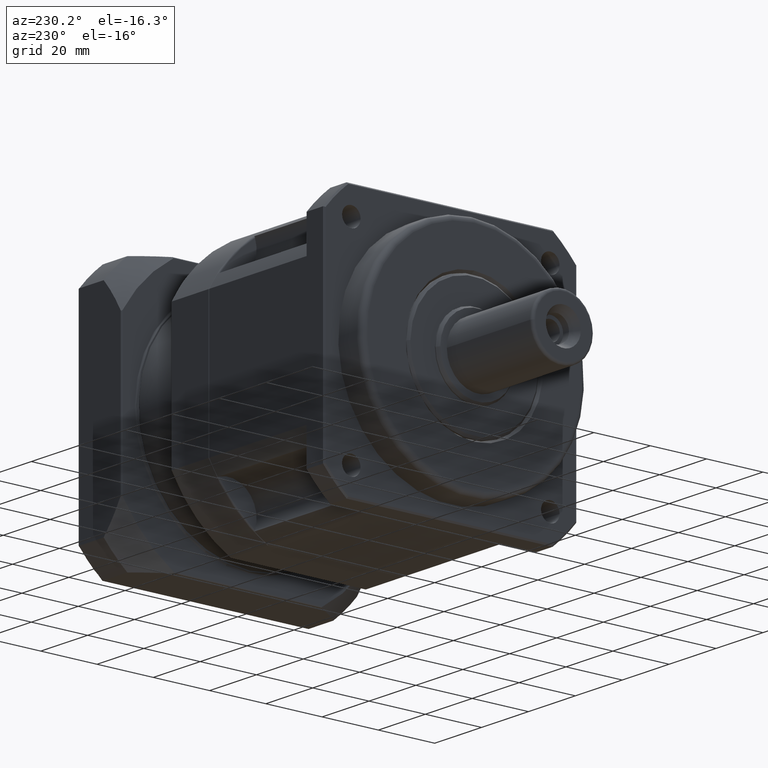
[diagram: clean part render]
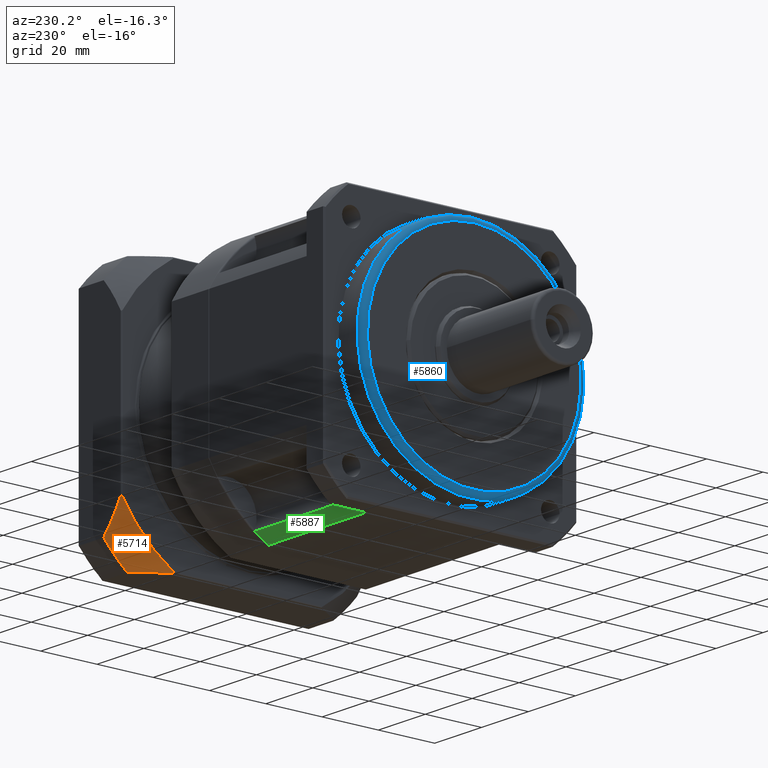
[diagram: same view with three faces highlighted in distinct colors, each labeled with its STEP entity id]
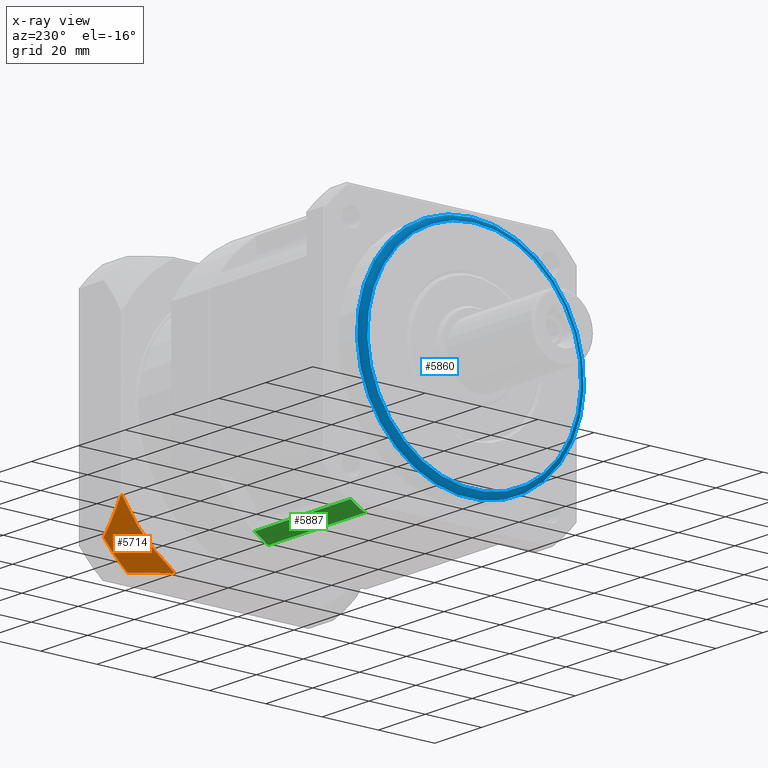
[diagram: x-ray of the same camera — body ghosted, the three highlighted faces saturated]
A machine part, auxiliary view with three faces highlighted in distinct colors.
The next image is the same camera in x-ray (body ghosted, the three faces saturated) — at least one of them is partly hidden behind the body in this view.
Their STEP definitions:

[orange] entity #5714 — the highlighted spherical surface has radius 71 mm.
#22=B_SPLINE_CURVE_WITH_KNOTS('',3,(#8869,#8870,#8871,#8872,#8873,#8874,
#8875,#8876,#8877,#8878,#8879,#8880,#8881,#8882,#8883,#8884,#8885),
 .UNSPECIFIED.,.F.,.F.,(4,2,2,3,2,2,2,4),(-0.0512583666717764,-0.016909635880921,
-0.00845481794046055,0.,0.0101172394984029,0.0202344789968059,0.0404689579936117,
0.0570529004931128),.UNSPECIFIED.);
#23=B_SPLINE_CURVE_WITH_KNOTS('',3,(#8889,#8890,#8891,#8892,#8893,#8894,
#8895,#8896,#8897,#8898,#8899,#8900,#8901,#8902,#8903,#8904,#8905,#8906,
#8907),.UNSPECIFIED.,.F.,.F.,(4,2,2,2,3,2,2,2,4),(-0.0570529004931131,-0.0404689579936089,
-0.0202344789968044,-0.0101172394984023,0.,0.00662296691176174,0.0132459338235235,
0.0359456465529045,0.0516311688356979),.UNSPECIFIED.);
#86=SPHERICAL_SURFACE('',#6178,71.);
#1230=FACE_OUTER_BOUND('',#1669,.T.);
#1669=EDGE_LOOP('',(#3963,#3964,#3965,#3966,#3967,#3968));
#2169=CIRCLE('',#6179,58.);
#2170=CIRCLE('',#6180,54.9181208709839);
#2171=CIRCLE('',#6181,51.8531580523308);
#2172=CIRCLE('',#6182,54.9181208709839);
#2551=VERTEX_POINT('',#8863);
#2552=VERTEX_POINT('',#8864);
#2553=VERTEX_POINT('',#8866);
#2554=VERTEX_POINT('',#8868);
#2555=VERTEX_POINT('',#8886);
#2556=VERTEX_POINT('',#8888);
#3108=EDGE_CURVE('',#2551,#2552,#2169,.T.);
#3109=EDGE_CURVE('',#2553,#2551,#2170,.T.);
#3110=EDGE_CURVE('',#2554,#2553,#22,.T.);
#3111=EDGE_CURVE('',#2555,#2554,#2171,.T.);
#3112=EDGE_CURVE('',#2556,#2555,#23,.T.);
#3113=EDGE_CURVE('',#2552,#2556,#2172,.T.);
#3963=ORIENTED_EDGE('',*,*,#3108,.F.);
#3964=ORIENTED_EDGE('',*,*,#3109,.F.);
#3965=ORIENTED_EDGE('',*,*,#3110,.F.);
#3966=ORIENTED_EDGE('',*,*,#3111,.F.);
#3967=ORIENTED_EDGE('',*,*,#3112,.F.);
#3968=ORIENTED_EDGE('',*,*,#3113,.F.);
#5714=ADVANCED_FACE('',(#1230),#86,.T.);
#6178=AXIS2_PLACEMENT_3D('',#8862,#7099,#7100);
#6179=AXIS2_PLACEMENT_3D('',#8865,#7101,#7102);
#6180=AXIS2_PLACEMENT_3D('',#8867,#7103,#7104);
#6181=AXIS2_PLACEMENT_3D('',#8887,#7105,#7106);
#6182=AXIS2_PLACEMENT_3D('',#8908,#7107,#7108);
#7099=DIRECTION('center_axis',(-5.20397496613031E-15,6.00458649938113E-16,
-1.));
#7100=DIRECTION('ref_axis',(1.,1.50114662484528E-15,-5.27903229737258E-15));
#7101=DIRECTION('center_axis',(1.,1.45660120077612E-15,-5.27608953374165E-15));
#7102=DIRECTION('ref_axis',(-5.27608953374165E-15,5.94793311827521E-16,
-1.));
#7103=DIRECTION('center_axis',(-5.27608953374165E-15,5.94793311827521E-16,
-1.));
#7104=DIRECTION('ref_axis',(1.45660120077612E-15,-1.,-5.94793311827528E-16));
#7105=DIRECTION('center_axis',(-1.,-1.45660120077612E-15,5.27608953374165E-15));
#7106=DIRECTION('ref_axis',(5.27608953374165E-15,-5.94793311827521E-16,
1.));
#7107=DIRECTION('center_axis',(-1.45660120077612E-15,1.,6.9347980290532E-16));
#7108=DIRECTION('ref_axis',(-5.27608953374165E-15,6.93479802905312E-16,
-1.));
#8862=CARTESIAN_POINT('Origin',(74.9702896556817,-32.3933275789246,10.8503877548306));
#8863=CARTESIAN_POINT('',(34.0190991967949,4.19902134813935,-34.1496122451691));
#8864=CARTESIAN_POINT('',(34.0190991967949,12.6066724210754,-25.7419611722331));
#8865=CARTESIAN_POINT('Origin',(34.0190991967952,-32.3933275789247,10.8503877548309));
#8866=CARTESIAN_POINT('',(26.9702896556814,-5.70999945067197,-34.1496122451691));
#8867=CARTESIAN_POINT('Origin',(74.9702896556815,-32.3933275789246,-34.1496122451694));
#8868=CARTESIAN_POINT('',(26.4702896556814,-5.7756642705123,-33.6496122451691));
#8869=CARTESIAN_POINT('Ctrl Pts',(26.4702896556814,-5.77566427051229,-33.6496122451691));
#8870=CARTESIAN_POINT('Ctrl Pts',(26.4702896556814,-5.87392370012765,-33.7083860971776));
#8871=CARTESIAN_POINT('Ctrl Pts',(26.4803774766426,-5.98667049718526,-33.7862562489213));
#8872=CARTESIAN_POINT('Ctrl Pts',(26.5315484256629,-6.06955332867531,-33.8905113369316));
#8873=CARTESIAN_POINT('Ctrl Pts',(26.5448937602094,-6.08474728495582,-33.9138896297172));
#8874=CARTESIAN_POINT('Ctrl Pts',(26.5775038254852,-6.10374934083441,-33.9602945668461));
#8875=CARTESIAN_POINT('Ctrl Pts',(26.5968957949769,-6.10732852187856,-33.9833251656511));
#8876=CARTESIAN_POINT('Ctrl Pts',(26.6167362650882,-6.10468701421983,-34.0031656357624));
#8877=CARTESIAN_POINT('Ctrl Pts',(26.6404778511625,-6.10152612231081,-34.0269072218367));
#8878=CARTESIAN_POINT('Ctrl Pts',(26.664129615807,-6.09057991705596,-34.0459530907243));
#8879=CARTESIAN_POINT('Ctrl Pts',(26.7110716975766,-6.0593264290544,-34.0781034193999));
#8880=CARTESIAN_POINT('Ctrl Pts',(26.7343542112001,-6.03896436577472,-34.0911659830564));
#8881=CARTESIAN_POINT('Ctrl Pts',(26.8027483492441,-5.96887826311141,-34.1233953487677));
#8882=CARTESIAN_POINT('Ctrl Pts',(26.8460836320389,-5.91041878128264,-34.1353976165284));
#8883=CARTESIAN_POINT('Ctrl Pts',(26.9134714938057,-5.80854287873031,-34.1473289256622));
#8884=CARTESIAN_POINT('Ctrl Pts',(26.9424230305173,-5.76012805537408,-34.1496122451691));
#8885=CARTESIAN_POINT('Ctrl Pts',(26.9702896556814,-5.70999945067197,-34.1496122451691));
#8886=CARTESIAN_POINT('',(26.4702896556815,12.1066724210754,-15.7672755535814));
#8887=CARTESIAN_POINT('Origin',(26.4702896556817,-32.3933275789247,10.8503877548309));
#8888=CARTESIAN_POINT('',(26.9702896556815,12.6066724210754,-15.8329403734217));
#8889=CARTESIAN_POINT('Ctrl Pts',(26.9702896556815,12.6066724210754,-15.8329403734217));
#8890=CARTESIAN_POINT('Ctrl Pts',(26.9424230305174,12.6066724210754,-15.7828117687196));
#8891=CARTESIAN_POINT('Ctrl Pts',(26.9134714938057,12.6043891015685,-15.7343969453634));
#8892=CARTESIAN_POINT('Ctrl Pts',(26.8460836320389,12.5924577924347,-15.632521042811));
#8893=CARTESIAN_POINT('Ctrl Pts',(26.8027483492442,12.580455524674,-15.5740615609823));
#8894=CARTESIAN_POINT('Ctrl Pts',(26.7343542112001,12.5482261589627,-15.503975458319));
#8895=CARTESIAN_POINT('Ctrl Pts',(26.7110716975766,12.5351635953062,-15.4836133950393));
#8896=CARTESIAN_POINT('Ctrl Pts',(26.6641296158071,12.5030132666306,-15.4523599070377));
#8897=CARTESIAN_POINT('Ctrl Pts',(26.6404778511626,12.483967397743,-15.4414137017829));
#8898=CARTESIAN_POINT('Ctrl Pts',(26.6167362650882,12.4602258116686,-15.4382528098739));
#8899=CARTESIAN_POINT('Ctrl Pts',(26.6011945020384,12.4446840486187,-15.4361836206916));
#8900=CARTESIAN_POINT('Ctrl Pts',(26.5854431776849,12.4266930510536,-15.4378785154299));
#8901=CARTESIAN_POINT('Ctrl Pts',(26.5576874858425,12.3900387239425,-15.4492437101769));
#8902=CARTESIAN_POINT('Ctrl Pts',(26.5456704486164,12.3713768581877,-15.4588877707905));
#8903=CARTESIAN_POINT('Ctrl Pts',(26.5034339530051,12.2974371241585,-15.5068726082861));
#8904=CARTESIAN_POINT('Ctrl Pts',(26.4859402063062,12.2388063899648,-15.5739608871601));
#8905=CARTESIAN_POINT('Ctrl Pts',(26.4725270025347,12.163355594928,-15.6764238875988));
#8906=CARTESIAN_POINT('Ctrl Pts',(26.4702896556815,12.1343704248643,-15.7209694164));
#8907=CARTESIAN_POINT('Ctrl Pts',(26.4702896556815,12.1066724210754,-15.7672755535814));
#8908=CARTESIAN_POINT('Origin',(74.9702896556817,12.6066724210754,10.8503877548307));

[blue] entity #5860 — the highlighted toroidal blend (fillet) surface has major radius 38 mm and minor (blend) radius 2 mm.
#786=TOROIDAL_SURFACE('',#6511,38.,2.);
#1087=FACE_BOUND('',#1888,.T.);
#1376=FACE_OUTER_BOUND('',#1887,.T.);
#1887=EDGE_LOOP('',(#4589));
#1888=EDGE_LOOP('',(#4590));
#2314=CIRCLE('',#6441,38.);
#2348=CIRCLE('',#6512,40.);
#2731=VERTEX_POINT('',#9939);
#2794=VERTEX_POINT('',#10170);
#3362=EDGE_CURVE('',#2731,#2731,#2314,.T.);
#3453=EDGE_CURVE('',#2794,#2794,#2348,.T.);
#4589=ORIENTED_EDGE('',*,*,#3453,.T.);
#4590=ORIENTED_EDGE('',*,*,#3362,.T.);
#5860=ADVANCED_FACE('',(#1376,#1087),#786,.T.);
#6441=AXIS2_PLACEMENT_3D('',#9940,#7689,#7690);
#6511=AXIS2_PLACEMENT_3D('',#10169,#7862,#7863);
#6512=AXIS2_PLACEMENT_3D('',#10171,#7864,#7865);
#7689=DIRECTION('center_axis',(1.,6.10622663543793E-16,-4.82820056512866E-15));
#7690=DIRECTION('ref_axis',(-4.82820056512866E-15,1.19348975147199E-15,
-1.));
#7862=DIRECTION('center_axis',(-1.,-6.10622663543793E-16,4.82820056512866E-15));
#7863=DIRECTION('ref_axis',(4.9737991503207E-15,-1.06581410364015E-15,1.));
#7864=DIRECTION('center_axis',(-1.,-6.10622663543793E-16,4.82820056512866E-15));
#7865=DIRECTION('ref_axis',(-4.82820056512866E-15,1.19348975147199E-15,
-1.));
#9939=CARTESIAN_POINT('',(-70.029710344318,-32.3933275789248,48.8503877548313));
#9940=CARTESIAN_POINT('Origin',(-70.0297103443182,-32.3933275789247,10.8503877548313));
#10169=CARTESIAN_POINT('Origin',(-68.0297103443182,-32.3933275789247,10.8503877548313));
#10170=CARTESIAN_POINT('',(-68.029710344318,-32.3933275789248,50.8503877548313));
#10171=CARTESIAN_POINT('Origin',(-68.0297103443182,-32.3933275789247,10.8503877548313));

[green] entity #5887 — the highlighted cylindrical surface (partial cylindrical patch) has radius 51 mm, axis along (-1, -0, 0).
#16=ELLIPSE('',#6455,72.1248916810285,51.);
#292=LINE('',#10205,#559);
#301=LINE('',#10235,#568);
#559=VECTOR('',#7916,41.);
#568=VECTOR('',#7957,41.5);
#1403=FACE_OUTER_BOUND('',#1926,.T.);
#1926=EDGE_LOOP('',(#4680,#4681,#4682,#4683,#4684));
#2306=CIRCLE('',#6429,51.);
#2325=CIRCLE('',#6464,51.);
#2723=VERTEX_POINT('',#9917);
#2724=VERTEX_POINT('',#9919);
#2744=VERTEX_POINT('',#9978);
#2745=VERTEX_POINT('',#9980);
#2752=VERTEX_POINT('',#10006);
#3353=EDGE_CURVE('',#2723,#2724,#2306,.T.);
#3378=EDGE_CURVE('',#2744,#2745,#16,.F.);
#3389=EDGE_CURVE('',#2744,#2752,#2325,.T.);
#3463=EDGE_CURVE('',#2752,#2724,#292,.T.);
#3478=EDGE_CURVE('',#2745,#2723,#301,.T.);
#4680=ORIENTED_EDGE('',*,*,#3463,.T.);
#4681=ORIENTED_EDGE('',*,*,#3353,.F.);
#4682=ORIENTED_EDGE('',*,*,#3478,.F.);
#4683=ORIENTED_EDGE('',*,*,#3378,.F.);
#4684=ORIENTED_EDGE('',*,*,#3389,.T.);
#5341=CYLINDRICAL_SURFACE('',#6552,51.);
#5887=ADVANCED_FACE('',(#1403),#5341,.T.);
#6429=AXIS2_PLACEMENT_3D('',#9920,#7664,#7665);
#6455=AXIS2_PLACEMENT_3D('',#9981,#7722,#7723);
#6464=AXIS2_PLACEMENT_3D('',#10008,#7743,#7744);
#6552=AXIS2_PLACEMENT_3D('',#10234,#7955,#7956);
#7664=DIRECTION('center_axis',(1.,6.10622663543793E-16,-4.82820056512866E-15));
#7665=DIRECTION('ref_axis',(4.82820056512866E-15,-1.19348975147199E-15,
1.));
#7722=DIRECTION('center_axis',(0.707106781186538,1.41526389678573E-15,-0.707106781186557));
#7723=DIRECTION('ref_axis',(0.707106781186557,-4.12149270404474E-16,0.707106781186538));
#7743=DIRECTION('center_axis',(1.,6.10622663543793E-16,-4.82820056512866E-15));
#7744=DIRECTION('ref_axis',(4.82820056512866E-15,-1.19348975147199E-15,
1.));
#7916=DIRECTION('',(1.,6.10622663543793E-16,-4.82820056512866E-15));
#7955=DIRECTION('center_axis',(-1.,-6.10622663543793E-16,4.82820056512866E-15));
#7956=DIRECTION('ref_axis',(4.82820056512866E-15,-1.19348975147199E-15,
1.));
#7957=DIRECTION('',(1.,6.10622663543793E-16,-4.82820056512866E-15));
#9917=CARTESIAN_POINT('',(-11.0297103443184,-8.39332757892463,-34.1496122451689));
#9919=CARTESIAN_POINT('',(-11.0297103443184,-3.45487286744506,-31.1444433427176));
#9920=CARTESIAN_POINT('Origin',(-11.0297103443182,-32.3933275789247,10.8503877548311));
#9978=CARTESIAN_POINT('',(-52.0297103443184,-7.47847257232269,-33.6496122451687));
#9980=CARTESIAN_POINT('',(-52.5297103443184,-8.39332757892466,-34.1496122451687));
#9981=CARTESIAN_POINT('Origin',(-7.52971034431738,-32.3933275789247,10.850387754831));
#10006=CARTESIAN_POINT('',(-52.0297103443184,-3.45487286744508,-31.1444433427174));
#10008=CARTESIAN_POINT('Origin',(-52.0297103443182,-32.3933275789247,10.8503877548313));
#10205=CARTESIAN_POINT('',(-11.0297103443184,-3.45487286744508,-31.1444433427176));
#10234=CARTESIAN_POINT('Origin',(-11.0297103443182,-32.3933275789247,10.8503877548311));
#10235=CARTESIAN_POINT('',(-11.0297103443184,-8.39332757892463,-34.1496122451689));